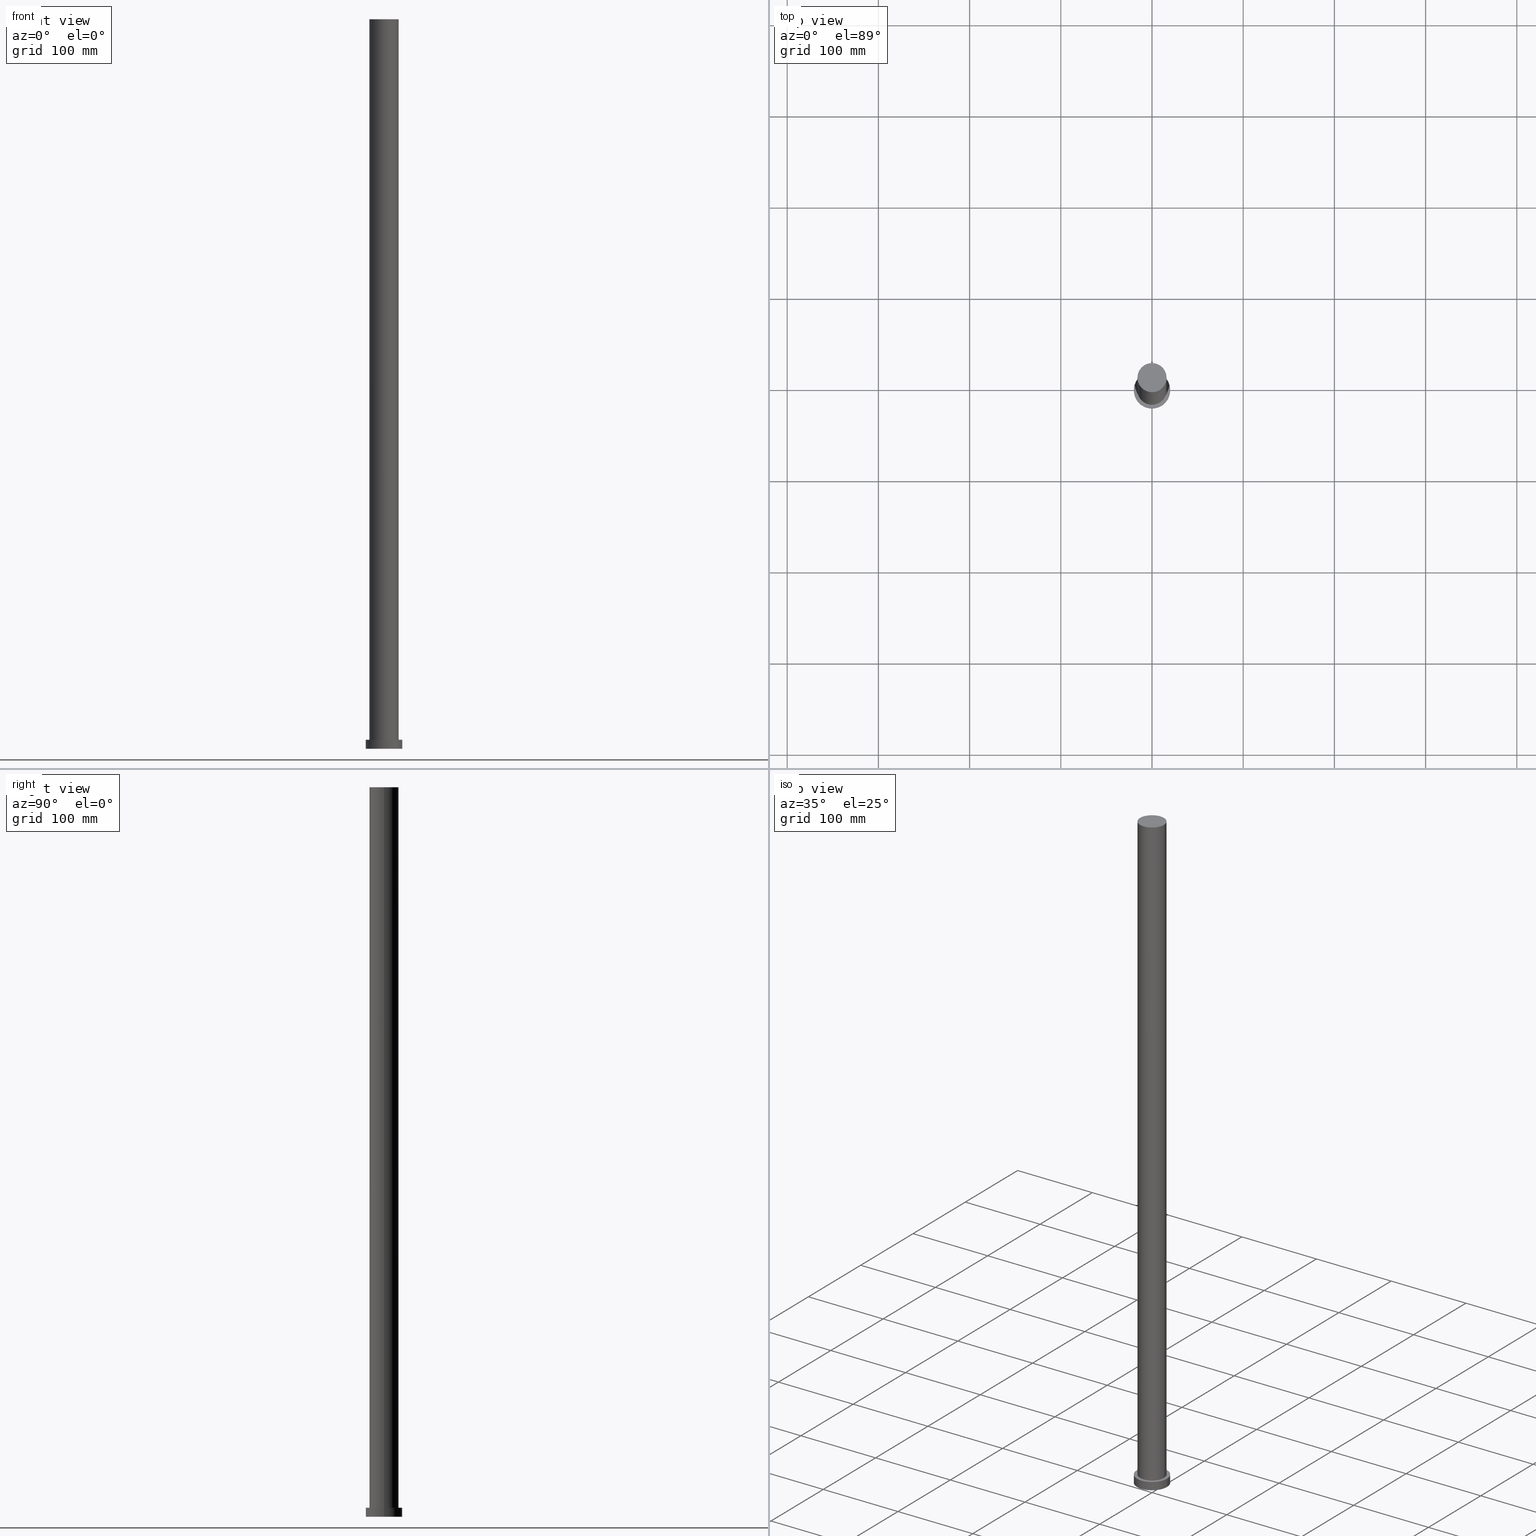
[diagram: canonical four-view strip — front | top / right | iso, engineering-drawing reading convention]
A machine part, canonical four-view strip (front | top / right | iso — engineering-drawing reading convention). The complete STEP part file that produces these views, byte-faithful:
ISO-10303-21;
HEADER;
FILE_DESCRIPTION (( 'STEP AP203' ),
    '1' );
FILE_NAME ('22bc.STEP',
    '2023-02-13T07:28:39',
    ( '' ),
    ( '' ),
    'SwSTEP 2.0',
    'SolidWorks 2019',
    '' );
FILE_SCHEMA (( 'CONFIG_CONTROL_DESIGN' ));
ENDSEC;

DATA;
#1 = CARTESIAN_POINT ( 'NONE',  ( 0.000000000000000000, 0.000000000000000000, 800.0000000000000000 ) ) ;
#2 = AXIS2_PLACEMENT_3D ( 'NONE', #112, #20, #170 ) ;
#3 = CARTESIAN_POINT ( 'NONE',  ( -20.00000000000000000, 0.000000000000000000, 10.00000000000000000 ) ) ;
#4 = DIRECTION ( 'NONE',  ( 1.000000000000000000, 0.000000000000000000, 0.000000000000000000 ) ) ;
#5 = DIRECTION ( 'NONE',  ( -1.000000000000000000, 0.000000000000000000, 0.000000000000000000 ) ) ;
#6 = AXIS2_PLACEMENT_3D ( 'NONE', #86, #103, #181 ) ;
#7 = AXIS2_PLACEMENT_3D ( 'NONE', #117, #232, #5 ) ;
#8 = FACE_OUTER_BOUND ( 'NONE', #238, .T. ) ;
#9 = APPROVAL_DATE_TIME ( #138, #239 ) ;
#10 = DIRECTION ( 'NONE',  ( 1.000000000000000000, 0.000000000000000000, 0.000000000000000000 ) ) ;
#11 = CALENDAR_DATE ( 2023, 13, 2 ) ;
#12 = DATE_AND_TIME ( #11, #41 ) ;
#13 = ADVANCED_FACE ( 'NONE', ( #96 ), #229, .T. ) ;
#14 = CARTESIAN_POINT ( 'NONE',  ( 0.000000000000000000, 0.000000000000000000, 0.000000000000000000 ) ) ;
#15 = ORGANIZATION ( 'NEUR�EN�', 'NEUR�EN�', '' ) ;
#16 = DIRECTION ( 'NONE',  ( 0.000000000000000000, 0.000000000000000000, 1.000000000000000000 ) ) ;
#17 = PERSON_AND_ORGANIZATION ( #80, #15 ) ;
#18 = PLANE ( 'NONE',  #27 ) ;
#19 =( LENGTH_UNIT ( ) NAMED_UNIT ( * ) SI_UNIT ( .MILLI., .METRE. ) );
#20 = DIRECTION ( 'NONE',  ( -0.000000000000000000, -0.000000000000000000, -1.000000000000000000 ) ) ;
#21 = CARTESIAN_POINT ( 'NONE',  ( 20.00000000000000000, 2.449293598294706513E-15, 10.00000000000000000 ) ) ;
#22 = CC_DESIGN_PERSON_AND_ORGANIZATION_ASSIGNMENT ( #48, #47, ( #167 ) ) ;
#23 = FACE_OUTER_BOUND ( 'NONE', #185, .T. ) ;
#24 = DIRECTION ( 'NONE',  ( 0.000000000000000000, 0.000000000000000000, 1.000000000000000000 ) ) ;
#25 = CLOSED_SHELL ( 'NONE', ( #100, #13, #46, #63, #28, #121, #156 ) ) ;
#26 = DIRECTION ( 'NONE',  ( 0.000000000000000000, 0.000000000000000000, 1.000000000000000000 ) ) ;
#27 = AXIS2_PLACEMENT_3D ( 'NONE', #200, #16, #248 ) ;
#28 = ADVANCED_FACE ( 'NONE', ( #187 ), #18, .F. ) ;
#29 = COORDINATED_UNIVERSAL_TIME_OFFSET ( 1, 0, .AHEAD. ) ;
#30 = COORDINATED_UNIVERSAL_TIME_OFFSET ( 1, 0, .AHEAD. ) ;
#31 = AXIS2_PLACEMENT_3D ( 'NONE', #45, #64, #10 ) ;
#32 = DATE_AND_TIME ( #141, #211 ) ;
#33 = ORIENTED_EDGE ( 'NONE', *, *, #140, .T. ) ;
#34 = VERTEX_POINT ( 'NONE', #109 ) ;
#35 = MECHANICAL_CONTEXT ( 'NONE', #210, 'mechanical' ) ;
#36 = ORIENTED_EDGE ( 'NONE', *, *, #124, .T. ) ;
#37 = CARTESIAN_POINT ( 'NONE',  ( 0.000000000000000000, 0.000000000000000000, 0.000000000000000000 ) ) ;
#38 = DIRECTION ( 'NONE',  ( 1.000000000000000000, 0.000000000000000000, 0.000000000000000000 ) ) ;
#39 = DIRECTION ( 'NONE',  ( 0.000000000000000000, 0.000000000000000000, 1.000000000000000000 ) ) ;
#40 = DIRECTION ( 'NONE',  ( 1.000000000000000000, 0.000000000000000000, -0.000000000000000000 ) ) ;
#41 = LOCAL_TIME ( 8, 28, 39.00000000000000000, #29 ) ;
#42 = EDGE_CURVE ( 'NONE', #190, #247, #68, .T. ) ;
#43 = DIRECTION ( 'NONE',  ( 0.000000000000000000, 0.000000000000000000, 1.000000000000000000 ) ) ;
#44 = DATE_TIME_ROLE ( 'classification_date' ) ;
#45 = CARTESIAN_POINT ( 'NONE',  ( 0.000000000000000000, 0.000000000000000000, 10.00000000000000000 ) ) ;
#46 = ADVANCED_FACE ( 'NONE', ( #227 ), #126, .T. ) ;
#47 = PERSON_AND_ORGANIZATION_ROLE ( 'design_supplier' ) ;
#48 = PERSON_AND_ORGANIZATION ( #80, #15 ) ;
#49 = APPROVAL_STATUS ( 'not_yet_approved' ) ;
#50 = EDGE_LOOP ( 'NONE', ( #75, #186 ) ) ;
#51 = VERTEX_POINT ( 'NONE', #219 ) ;
#52 = APPLICATION_PROTOCOL_DEFINITION ( 'international standard', 'config_control_design', 1994, #134 ) ;
#53 = VERTEX_POINT ( 'NONE', #89 ) ;
#54 = CALENDAR_DATE ( 2023, 13, 2 ) ;
#55 = ORIENTED_EDGE ( 'NONE', *, *, #189, .F. ) ;
#56 = EDGE_CURVE ( 'NONE', #190, #162, #225, .T. ) ;
#57 = AXIS2_PLACEMENT_3D ( 'NONE', #14, #43, #246 ) ;
#58 = PRODUCT_DEFINITION ( 'NEZN�M�', '', #167, #111 ) ;
#59 = APPROVAL_PERSON_ORGANIZATION ( #90, #245, #125 ) ;
#60 = CC_DESIGN_PERSON_AND_ORGANIZATION_ASSIGNMENT ( #65, #218, ( #167 ) ) ;
#61 = DIRECTION ( 'NONE',  ( 1.000000000000000000, 0.000000000000000000, 0.000000000000000000 ) ) ;
#62 = CARTESIAN_POINT ( 'NONE',  ( 20.00000000000000000, 2.449293598294706513E-15, 10.00000000000000000 ) ) ;
#63 = ADVANCED_FACE ( 'NONE', ( #123, #8 ), #84, .T. ) ;
#64 = DIRECTION ( 'NONE',  ( 0.000000000000000000, 0.000000000000000000, 1.000000000000000000 ) ) ;
#65 = PERSON_AND_ORGANIZATION ( #80, #15 ) ;
#66 = COORDINATED_UNIVERSAL_TIME_OFFSET ( 1, 0, .AHEAD. ) ;
#67 = ORIENTED_EDGE ( 'NONE', *, *, #213, .T. ) ;
#68 = LINE ( 'NONE', #72, #132 ) ;
#69 = AXIS2_PLACEMENT_3D ( 'NONE', #215, #154, #178 ) ;
#70 = ORIENTED_EDGE ( 'NONE', *, *, #56, .T. ) ;
#71 = APPROVAL_ROLE ( '' ) ;
#72 = CARTESIAN_POINT ( 'NONE',  ( -20.00000000000000000, 0.000000000000000000, 10.00000000000000000 ) ) ;
#73 = EDGE_CURVE ( 'NONE', #51, #247, #114, .T. ) ;
#74 = CARTESIAN_POINT ( 'NONE',  ( 0.000000000000000000, 0.000000000000000000, 800.0000000000000000 ) ) ;
#75 = ORIENTED_EDGE ( 'NONE', *, *, #92, .F. ) ;
#76 = CC_DESIGN_APPROVAL ( #171, ( #58 ) ) ;
#77 = DIRECTION ( 'NONE',  ( 0.000000000000000000, 0.000000000000000000, 1.000000000000000000 ) ) ;
#78 = CARTESIAN_POINT ( 'NONE',  ( -16.00000000000000000, 0.000000000000000000, 800.0000000000000000 ) ) ;
#79 = CARTESIAN_POINT ( 'NONE',  ( 16.00000000000000000, 1.959434878635764737E-15, 800.0000000000000000 ) ) ;
#80 = PERSON ( 'NEUR�EN�', 'NEUR�EN�', 'NEUR�EN�', ('NEUR�EN�'), ('NEUR�EN�'), ('NEUR�EN�') ) ;
#81 = CC_DESIGN_PERSON_AND_ORGANIZATION_ASSIGNMENT ( #157, #85, ( #58 ) ) ;
#82 = CYLINDRICAL_SURFACE ( 'NONE', #69, 16.00000000000000000 ) ;
#83 = LOCAL_TIME ( 8, 28, 39.00000000000000000, #30 ) ;
#84 = PLANE ( 'NONE',  #198 ) ;
#85 = PERSON_AND_ORGANIZATION_ROLE ( 'creator' ) ;
#86 = CARTESIAN_POINT ( 'NONE',  ( 0.000000000000000000, 0.000000000000000000, 0.000000000000000000 ) ) ;
#87 = APPROVAL_DATE_TIME ( #12, #171 ) ;
#88 = VECTOR ( 'NONE', #153, 1000.000000000000000 ) ;
#89 = CARTESIAN_POINT ( 'NONE',  ( 16.00000000000000000, 1.959434878635764737E-15, 10.00000000000000000 ) ) ;
#90 = PERSON_AND_ORGANIZATION ( #80, #15 ) ;
#91 = VERTEX_POINT ( 'NONE', #221 ) ;
#92 = EDGE_CURVE ( 'NONE', #247, #51, #172, .T. ) ;
#93 = CARTESIAN_POINT ( 'NONE',  ( 0.000000000000000000, 0.000000000000000000, 10.00000000000000000 ) ) ;
#94 = CC_DESIGN_APPROVAL ( #245, ( #255 ) ) ;
#95 = LINE ( 'NONE', #21, #249 ) ;
#96 = FACE_OUTER_BOUND ( 'NONE', #146, .T. ) ;
#97 = ORIENTED_EDGE ( 'NONE', *, *, #224, .T. ) ;
#98 = VECTOR ( 'NONE', #99, 1000.000000000000000 ) ;
#99 = DIRECTION ( 'NONE',  ( -0.000000000000000000, -0.000000000000000000, -1.000000000000000000 ) ) ;
#100 = ADVANCED_FACE ( 'NONE', ( #192 ), #176, .T. ) ;
#101 = LINE ( 'NONE', #79, #88 ) ;
#102 = AXIS2_PLACEMENT_3D ( 'NONE', #118, #26, #150 ) ;
#103 = DIRECTION ( 'NONE',  ( 0.000000000000000000, 0.000000000000000000, 1.000000000000000000 ) ) ;
#104 = CALENDAR_DATE ( 2023, 13, 2 ) ;
#105 = ORIENTED_EDGE ( 'NONE', *, *, #224, .F. ) ;
#106 = LOCAL_TIME ( 8, 28, 39.00000000000000000, #66 ) ;
#107 = ORIENTED_EDGE ( 'NONE', *, *, #206, .T. ) ;
#108 = APPLICATION_PROTOCOL_DEFINITION ( 'international standard', 'config_control_design', 1994, #210 ) ;
#109 = CARTESIAN_POINT ( 'NONE',  ( -16.00000000000000000, 0.000000000000000000, 800.0000000000000000 ) ) ;
#110 = EDGE_LOOP ( 'NONE', ( #129, #166 ) ) ;
#111 = DESIGN_CONTEXT ( 'detailed design', #134, 'design' ) ;
#112 = CARTESIAN_POINT ( 'NONE',  ( 0.000000000000000000, 0.000000000000000000, 10.00000000000000000 ) ) ;
#113 = CARTESIAN_POINT ( 'NONE',  ( -20.00000000000000000, 0.000000000000000000, 0.000000000000000000 ) ) ;
#114 = CIRCLE ( 'NONE', #57, 20.00000000000000000 ) ;
#115 = CARTESIAN_POINT ( 'NONE',  ( 0.000000000000000000, 0.000000000000000000, 800.0000000000000000 ) ) ;
#116 = AXIS2_PLACEMENT_3D ( 'NONE', #37, #135, #209 ) ;
#117 = CARTESIAN_POINT ( 'NONE',  ( 0.000000000000000000, 0.000000000000000000, 800.0000000000000000 ) ) ;
#118 = CARTESIAN_POINT ( 'NONE',  ( 0.000000000000000000, 0.000000000000000000, 10.00000000000000000 ) ) ;
#119 = ORIENTED_EDGE ( 'NONE', *, *, #235, .F. ) ;
#120 = DIRECTION ( 'NONE',  ( 0.000000000000000000, 0.000000000000000000, 1.000000000000000000 ) ) ;
#121 = ADVANCED_FACE ( 'NONE', ( #23 ), #82, .T. ) ;
#122 = PERSON_AND_ORGANIZATION ( #80, #15 ) ;
#123 = FACE_BOUND ( 'NONE', #110, .T. ) ;
#124 = EDGE_CURVE ( 'NONE', #53, #148, #160, .T. ) ;
#125 = APPROVAL_ROLE ( '' ) ;
#126 = CYLINDRICAL_SURFACE ( 'NONE', #236, 20.00000000000000000 ) ;
#127 = MANIFOLD_SOLID_BREP ( 'P�idat vysunut�m3', #25 ) ;
#128 = PRODUCT_DEFINITION_SHAPE ( 'NONE', 'NONE',  #58 ) ;
#129 = ORIENTED_EDGE ( 'NONE', *, *, #213, .F. ) ;
#130 = DIRECTION ( 'NONE',  ( -0.000000000000000000, -0.000000000000000000, -1.000000000000000000 ) ) ;
#131 = ORIENTED_EDGE ( 'NONE', *, *, #73, .T. ) ;
#132 = VECTOR ( 'NONE', #142, 1000.000000000000000 ) ;
#133 =( NAMED_UNIT ( * ) SI_UNIT ( $, .STERADIAN. ) SOLID_ANGLE_UNIT ( ) );
#134 = APPLICATION_CONTEXT ( 'configuration controlled 3d designs of mechanical parts and assemblies' ) ;
#135 = DIRECTION ( 'NONE',  ( 0.000000000000000000, 0.000000000000000000, 1.000000000000000000 ) ) ;
#136 = CC_DESIGN_DATE_AND_TIME_ASSIGNMENT ( #183, #44, ( #255 ) ) ;
#137 = DIRECTION ( 'NONE',  ( 1.000000000000000000, 0.000000000000000000, -0.000000000000000000 ) ) ;
#138 = DATE_AND_TIME ( #180, #106 ) ;
#139 = AXIS2_PLACEMENT_3D ( 'NONE', #201, #165, #38 ) ;
#140 = EDGE_CURVE ( 'NONE', #34, #148, #237, .T. ) ;
#141 = CALENDAR_DATE ( 2023, 13, 2 ) ;
#142 = DIRECTION ( 'NONE',  ( -0.000000000000000000, -0.000000000000000000, -1.000000000000000000 ) ) ;
#143 =( GEOMETRIC_REPRESENTATION_CONTEXT ( 3 ) GLOBAL_UNCERTAINTY_ASSIGNED_CONTEXT ( ( #175 ) ) GLOBAL_UNIT_ASSIGNED_CONTEXT ( ( #19, #205, #133 ) ) REPRESENTATION_CONTEXT ( 'NONE', 'WORKASPACE' ) );
#144 = AXIS2_PLACEMENT_3D ( 'NONE', #115, #77, #40 ) ;
#145 = PERSON_AND_ORGANIZATION ( #80, #15 ) ;
#146 = EDGE_LOOP ( 'NONE', ( #204, #97, #131, #244 ) ) ;
#147 = EDGE_LOOP ( 'NONE', ( #105, #253, #207, #197 ) ) ;
#148 = VERTEX_POINT ( 'NONE', #174 ) ;
#149 = APPROVAL_PERSON_ORGANIZATION ( #17, #171, #71 ) ;
#150 = DIRECTION ( 'NONE',  ( 1.000000000000000000, 0.000000000000000000, 0.000000000000000000 ) ) ;
#151 = AXIS2_PLACEMENT_3D ( 'NONE', #74, #231, #188 ) ;
#152 = PLANE ( 'NONE',  #144 ) ;
#153 = DIRECTION ( 'NONE',  ( -0.000000000000000000, -0.000000000000000000, -1.000000000000000000 ) ) ;
#154 = DIRECTION ( 'NONE',  ( -0.000000000000000000, -0.000000000000000000, -1.000000000000000000 ) ) ;
#155 = CC_DESIGN_APPROVAL ( #239, ( #167 ) ) ;
#156 = ADVANCED_FACE ( 'NONE', ( #194 ), #152, .T. ) ;
#157 = PERSON_AND_ORGANIZATION ( #80, #15 ) ;
#158 = EDGE_CURVE ( 'NONE', #162, #190, #217, .T. ) ;
#159 = COORDINATED_UNIVERSAL_TIME_OFFSET ( 1, 0, .AHEAD. ) ;
#160 = CIRCLE ( 'NONE', #179, 16.00000000000000000 ) ;
#161 = ORIENTED_EDGE ( 'NONE', *, *, #158, .T. ) ;
#162 = VERTEX_POINT ( 'NONE', #62 ) ;
#163 = DATE_AND_TIME ( #54, #195 ) ;
#164 = ORIENTED_EDGE ( 'NONE', *, *, #140, .F. ) ;
#165 = DIRECTION ( 'NONE',  ( 0.000000000000000000, 0.000000000000000000, 1.000000000000000000 ) ) ;
#166 = ORIENTED_EDGE ( 'NONE', *, *, #124, .F. ) ;
#167 = PRODUCT_DEFINITION_FORMATION_WITH_SPECIFIED_SOURCE ( 'LIBOVOLN�', '', #169, .NOT_KNOWN. ) ;
#168 = APPROVAL_STATUS ( 'not_yet_approved' ) ;
#169 = PRODUCT ( '22bc', '22bc', '', ( #35 ) ) ;
#170 = DIRECTION ( 'NONE',  ( -1.000000000000000000, 0.000000000000000000, 0.000000000000000000 ) ) ;
#171 = APPROVAL ( #168, 'NEUR�EN�' ) ;
#172 = CIRCLE ( 'NONE', #6, 20.00000000000000000 ) ;
#173 = ADVANCED_BREP_SHAPE_REPRESENTATION ( '22bc', ( #127, #116 ), #143 ) ;
#174 = CARTESIAN_POINT ( 'NONE',  ( -16.00000000000000000, 0.000000000000000000, 10.00000000000000000 ) ) ;
#175 = UNCERTAINTY_MEASURE_WITH_UNIT (LENGTH_MEASURE( 1.000000000000000082E-05 ), #19, 'distance_accuracy_value', 'NONE');
#176 = CYLINDRICAL_SURFACE ( 'NONE', #7, 16.00000000000000000 ) ;
#177 = CC_DESIGN_PERSON_AND_ORGANIZATION_ASSIGNMENT ( #122, #196, ( #255 ) ) ;
#178 = DIRECTION ( 'NONE',  ( -1.000000000000000000, 0.000000000000000000, 0.000000000000000000 ) ) ;
#179 = AXIS2_PLACEMENT_3D ( 'NONE', #234, #24, #61 ) ;
#180 = CALENDAR_DATE ( 2023, 13, 2 ) ;
#181 = DIRECTION ( 'NONE',  ( 1.000000000000000000, 0.000000000000000000, 0.000000000000000000 ) ) ;
#182 = CARTESIAN_POINT ( 'NONE',  ( 0.000000000000000000, 0.000000000000000000, 10.00000000000000000 ) ) ;
#183 = DATE_AND_TIME ( #104, #83 ) ;
#184 = ORIENTED_EDGE ( 'NONE', *, *, #206, .F. ) ;
#185 = EDGE_LOOP ( 'NONE', ( #184, #55, #33, #67 ) ) ;
#186 = ORIENTED_EDGE ( 'NONE', *, *, #73, .F. ) ;
#187 = FACE_OUTER_BOUND ( 'NONE', #50, .T. ) ;
#188 = DIRECTION ( 'NONE',  ( 1.000000000000000000, 0.000000000000000000, 0.000000000000000000 ) ) ;
#189 = EDGE_CURVE ( 'NONE', #34, #91, #193, .T. ) ;
#190 = VERTEX_POINT ( 'NONE', #3 ) ;
#191 = AXIS2_PLACEMENT_3D ( 'NONE', #1, #39, #4 ) ;
#192 = FACE_OUTER_BOUND ( 'NONE', #254, .T. ) ;
#193 = CIRCLE ( 'NONE', #191, 16.00000000000000000 ) ;
#194 = FACE_OUTER_BOUND ( 'NONE', #240, .T. ) ;
#195 = LOCAL_TIME ( 8, 28, 39.00000000000000000, #199 ) ;
#196 = PERSON_AND_ORGANIZATION_ROLE ( 'classification_officer' ) ;
#197 = ORIENTED_EDGE ( 'NONE', *, *, #92, .T. ) ;
#198 = AXIS2_PLACEMENT_3D ( 'NONE', #182, #120, #137 ) ;
#199 = COORDINATED_UNIVERSAL_TIME_OFFSET ( 1, 0, .AHEAD. ) ;
#200 = CARTESIAN_POINT ( 'NONE',  ( 0.000000000000000000, 0.000000000000000000, 0.000000000000000000 ) ) ;
#201 = CARTESIAN_POINT ( 'NONE',  ( 0.000000000000000000, 0.000000000000000000, 10.00000000000000000 ) ) ;
#202 = DIRECTION ( 'NONE',  ( -0.000000000000000000, -0.000000000000000000, -1.000000000000000000 ) ) ;
#203 = CC_DESIGN_PERSON_AND_ORGANIZATION_ASSIGNMENT ( #145, #228, ( #169 ) ) ;
#204 = ORIENTED_EDGE ( 'NONE', *, *, #158, .F. ) ;
#205 =( NAMED_UNIT ( * ) PLANE_ANGLE_UNIT ( ) SI_UNIT ( $, .RADIAN. ) );
#206 = EDGE_CURVE ( 'NONE', #91, #53, #101, .T. ) ;
#207 = ORIENTED_EDGE ( 'NONE', *, *, #42, .T. ) ;
#208 = CIRCLE ( 'NONE', #139, 16.00000000000000000 ) ;
#209 = DIRECTION ( 'NONE',  ( 1.000000000000000000, 0.000000000000000000, 0.000000000000000000 ) ) ;
#210 = APPLICATION_CONTEXT ( 'configuration controlled 3d designs of mechanical parts and assemblies' ) ;
#211 = LOCAL_TIME ( 8, 28, 39.00000000000000000, #159 ) ;
#212 = PRODUCT_RELATED_PRODUCT_CATEGORY ( 'detail', '', ( #169 ) ) ;
#213 = EDGE_CURVE ( 'NONE', #148, #53, #208, .T. ) ;
#214 = APPROVAL_PERSON_ORGANIZATION ( #222, #239, #220 ) ;
#215 = CARTESIAN_POINT ( 'NONE',  ( 0.000000000000000000, 0.000000000000000000, 800.0000000000000000 ) ) ;
#216 = SECURITY_CLASSIFICATION_LEVEL ( 'unclassified' ) ;
#217 = CIRCLE ( 'NONE', #102, 20.00000000000000000 ) ;
#218 = PERSON_AND_ORGANIZATION_ROLE ( 'creator' ) ;
#219 = CARTESIAN_POINT ( 'NONE',  ( 20.00000000000000000, 2.449293598294706513E-15, 0.000000000000000000 ) ) ;
#220 = APPROVAL_ROLE ( '' ) ;
#221 = CARTESIAN_POINT ( 'NONE',  ( 16.00000000000000000, 1.959434878635764737E-15, 800.0000000000000000 ) ) ;
#222 = PERSON_AND_ORGANIZATION ( #80, #15 ) ;
#223 = APPROVAL_STATUS ( 'not_yet_approved' ) ;
#224 = EDGE_CURVE ( 'NONE', #162, #51, #95, .T. ) ;
#225 = CIRCLE ( 'NONE', #31, 20.00000000000000000 ) ;
#226 = SHAPE_DEFINITION_REPRESENTATION ( #128, #173 ) ;
#227 = FACE_OUTER_BOUND ( 'NONE', #147, .T. ) ;
#228 = PERSON_AND_ORGANIZATION_ROLE ( 'design_owner' ) ;
#229 = CYLINDRICAL_SURFACE ( 'NONE', #2, 20.00000000000000000 ) ;
#230 = ORIENTED_EDGE ( 'NONE', *, *, #189, .T. ) ;
#231 = DIRECTION ( 'NONE',  ( 0.000000000000000000, 0.000000000000000000, 1.000000000000000000 ) ) ;
#232 = DIRECTION ( 'NONE',  ( -0.000000000000000000, -0.000000000000000000, -1.000000000000000000 ) ) ;
#233 = CC_DESIGN_SECURITY_CLASSIFICATION ( #255, ( #167 ) ) ;
#234 = CARTESIAN_POINT ( 'NONE',  ( 0.000000000000000000, 0.000000000000000000, 10.00000000000000000 ) ) ;
#235 = EDGE_CURVE ( 'NONE', #91, #34, #242, .T. ) ;
#236 = AXIS2_PLACEMENT_3D ( 'NONE', #93, #202, #241 ) ;
#237 = LINE ( 'NONE', #78, #98 ) ;
#238 = EDGE_LOOP ( 'NONE', ( #70, #161 ) ) ;
#239 = APPROVAL ( #49, 'NEUR�EN�' ) ;
#240 = EDGE_LOOP ( 'NONE', ( #230, #251 ) ) ;
#241 = DIRECTION ( 'NONE',  ( -1.000000000000000000, 0.000000000000000000, 0.000000000000000000 ) ) ;
#242 = CIRCLE ( 'NONE', #151, 16.00000000000000000 ) ;
#243 = DATE_TIME_ROLE ( 'creation_date' ) ;
#244 = ORIENTED_EDGE ( 'NONE', *, *, #42, .F. ) ;
#245 = APPROVAL ( #223, 'NEUR�EN�' ) ;
#246 = DIRECTION ( 'NONE',  ( 1.000000000000000000, 0.000000000000000000, 0.000000000000000000 ) ) ;
#247 = VERTEX_POINT ( 'NONE', #113 ) ;
#248 = DIRECTION ( 'NONE',  ( 1.000000000000000000, 0.000000000000000000, -0.000000000000000000 ) ) ;
#249 = VECTOR ( 'NONE', #130, 1000.000000000000000 ) ;
#250 = APPROVAL_DATE_TIME ( #163, #245 ) ;
#251 = ORIENTED_EDGE ( 'NONE', *, *, #235, .T. ) ;
#252 = CC_DESIGN_DATE_AND_TIME_ASSIGNMENT ( #32, #243, ( #58 ) ) ;
#253 = ORIENTED_EDGE ( 'NONE', *, *, #56, .F. ) ;
#254 = EDGE_LOOP ( 'NONE', ( #119, #107, #36, #164 ) ) ;
#255 = SECURITY_CLASSIFICATION ( '', '', #216 ) ;
ENDSEC;
END-ISO-10303-21;
